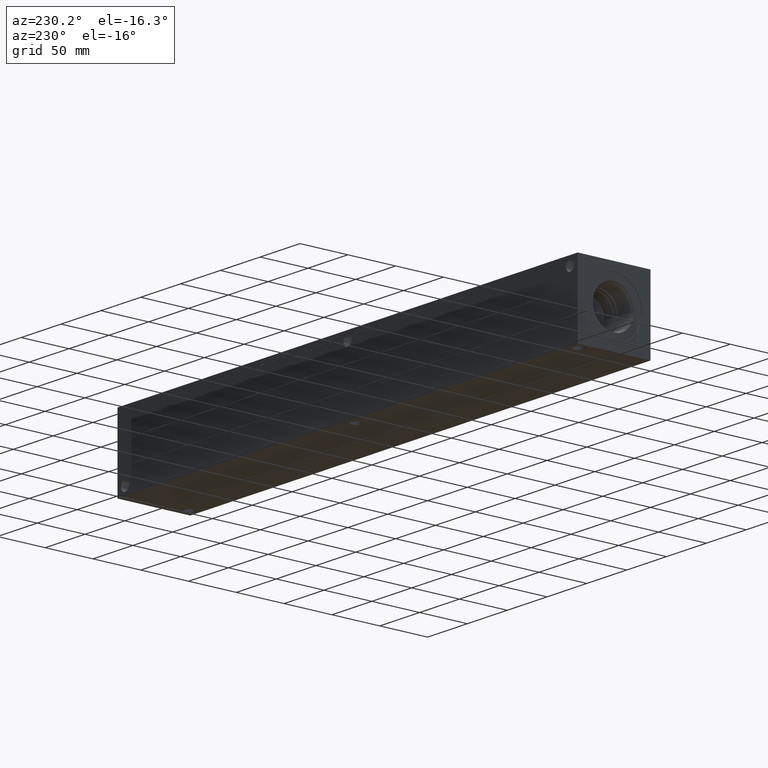
[diagram: clean part render]
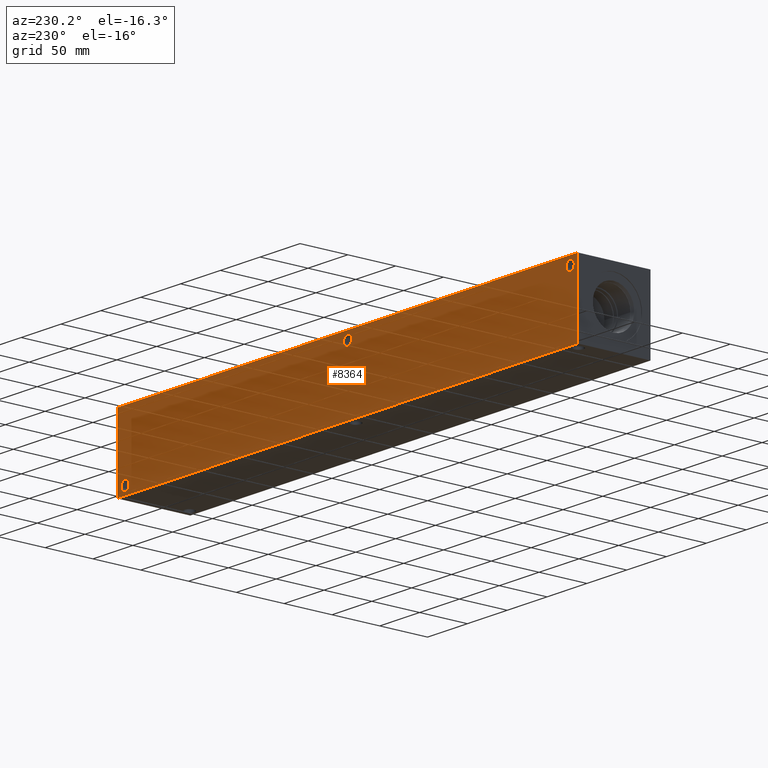
[diagram: same view with one face highlighted and labeled with its STEP entity id]
A machine part, auxiliary view. The second image highlights one B-rep face of the part: STEP entity #8364.
In plain terms, the highlighted planar face has unit normal (0, 1, 0).
Its self-contained STEP definition (entity closure, byte-faithful):
#151=CIRCLE('',#8608,5.1562);
#154=CIRCLE('',#8617,5.1562);
#157=CIRCLE('',#8626,5.1562);
#360=FACE_BOUND('',#1645,.T.);
#361=FACE_BOUND('',#1646,.T.);
#362=FACE_BOUND('',#1647,.T.);
#1158=FACE_OUTER_BOUND('',#1644,.T.);
#1644=EDGE_LOOP('',(#7380,#7381,#7382,#7383));
#1645=EDGE_LOOP('',(#7384));
#1646=EDGE_LOOP('',(#7385));
#1647=EDGE_LOOP('',(#7386));
#1908=LINE('',#12908,#2638);
#2383=LINE('',#14712,#3113);
#2384=LINE('',#14715,#3114);
#2385=LINE('',#14716,#3115);
#2638=VECTOR('',#9262,10.);
#3113=VECTOR('',#10629,10.);
#3114=VECTOR('',#10632,10.);
#3115=VECTOR('',#10633,10.);
#3423=VERTEX_POINT('',#12905);
#3424=VERTEX_POINT('',#12907);
#3709=VERTEX_POINT('',#13866);
#3714=VERTEX_POINT('',#13882);
#3719=VERTEX_POINT('',#13898);
#3896=VERTEX_POINT('',#14708);
#3898=VERTEX_POINT('',#14714);
#4355=EDGE_CURVE('',#3423,#3424,#1908,.T.);
#4776=EDGE_CURVE('',#3709,#3709,#151,.T.);
#4785=EDGE_CURVE('',#3714,#3714,#154,.T.);
#4794=EDGE_CURVE('',#3719,#3719,#157,.T.);
#5065=EDGE_CURVE('',#3896,#3424,#2383,.T.);
#5066=EDGE_CURVE('',#3898,#3896,#2384,.T.);
#5067=EDGE_CURVE('',#3898,#3423,#2385,.T.);
#7380=ORIENTED_EDGE('',*,*,#5066,.T.);
#7381=ORIENTED_EDGE('',*,*,#5065,.T.);
#7382=ORIENTED_EDGE('',*,*,#4355,.F.);
#7383=ORIENTED_EDGE('',*,*,#5067,.F.);
#7384=ORIENTED_EDGE('',*,*,#4776,.T.);
#7385=ORIENTED_EDGE('',*,*,#4785,.T.);
#7386=ORIENTED_EDGE('',*,*,#4794,.T.);
#7629=PLANE('',#8888);
#8364=ADVANCED_FACE('',(#1158,#360,#361,#362),#7629,.T.);
#8608=AXIS2_PLACEMENT_3D('',#13868,#9975,#9976);
#8617=AXIS2_PLACEMENT_3D('',#13884,#9995,#9996);
#8626=AXIS2_PLACEMENT_3D('',#13900,#10015,#10016);
#8888=AXIS2_PLACEMENT_3D('',#14713,#10630,#10631);
#9262=DIRECTION('',(-1.,0.,0.));
#9975=DIRECTION('center_axis',(0.,-1.,0.));
#9976=DIRECTION('ref_axis',(1.,0.,0.));
#9995=DIRECTION('center_axis',(0.,-1.,0.));
#9996=DIRECTION('ref_axis',(1.,0.,0.));
#10015=DIRECTION('center_axis',(0.,-1.,0.));
#10016=DIRECTION('ref_axis',(1.,0.,0.));
#10629=DIRECTION('',(0.,0.,1.));
#10630=DIRECTION('center_axis',(0.,1.,0.));
#10631=DIRECTION('ref_axis',(-1.,0.,0.));
#10632=DIRECTION('',(-1.,0.,0.));
#10633=DIRECTION('',(0.,0.,1.));
#12905=CARTESIAN_POINT('',(577.85,76.2,76.2));
#12907=CARTESIAN_POINT('',(0.,76.2,76.2));
#12908=CARTESIAN_POINT('',(577.85,76.2,76.2));
#13866=CARTESIAN_POINT('',(283.7688,76.2,67.4624));
#13868=CARTESIAN_POINT('Origin',(288.925,76.2,67.4624));
#13882=CARTESIAN_POINT('',(4.3688,76.2,67.4624));
#13884=CARTESIAN_POINT('Origin',(9.525,76.2,67.4624));
#13898=CARTESIAN_POINT('',(563.1688,76.2,8.7376));
#13900=CARTESIAN_POINT('Origin',(568.325,76.2,8.7376));
#14708=CARTESIAN_POINT('',(0.,76.2,0.));
#14712=CARTESIAN_POINT('',(0.,76.2,0.));
#14713=CARTESIAN_POINT('Origin',(577.85,76.2,0.));
#14714=CARTESIAN_POINT('',(577.85,76.2,0.));
#14715=CARTESIAN_POINT('',(577.85,76.2,0.));
#14716=CARTESIAN_POINT('',(577.85,76.2,0.));